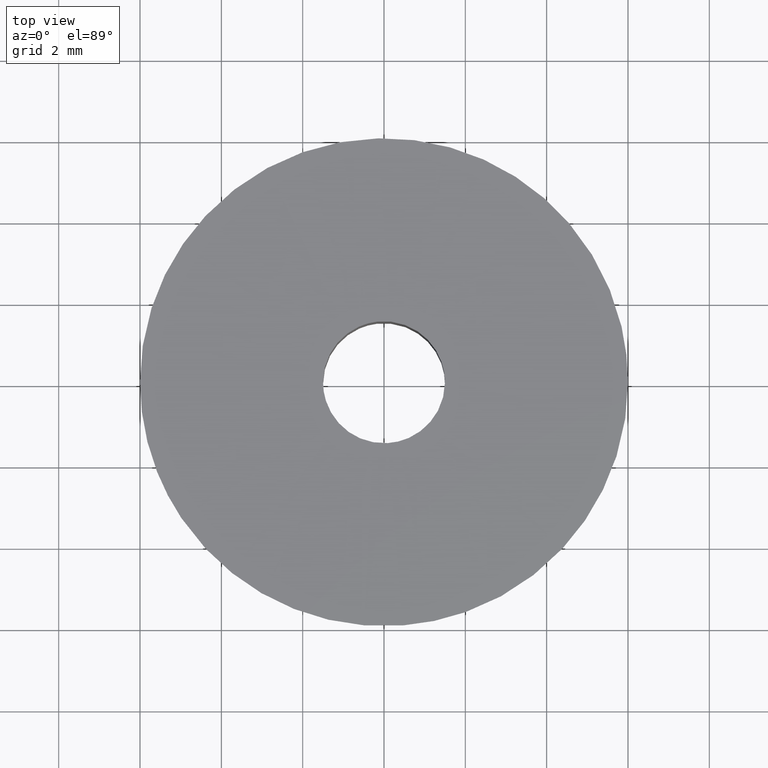
[diagram: clean part render]
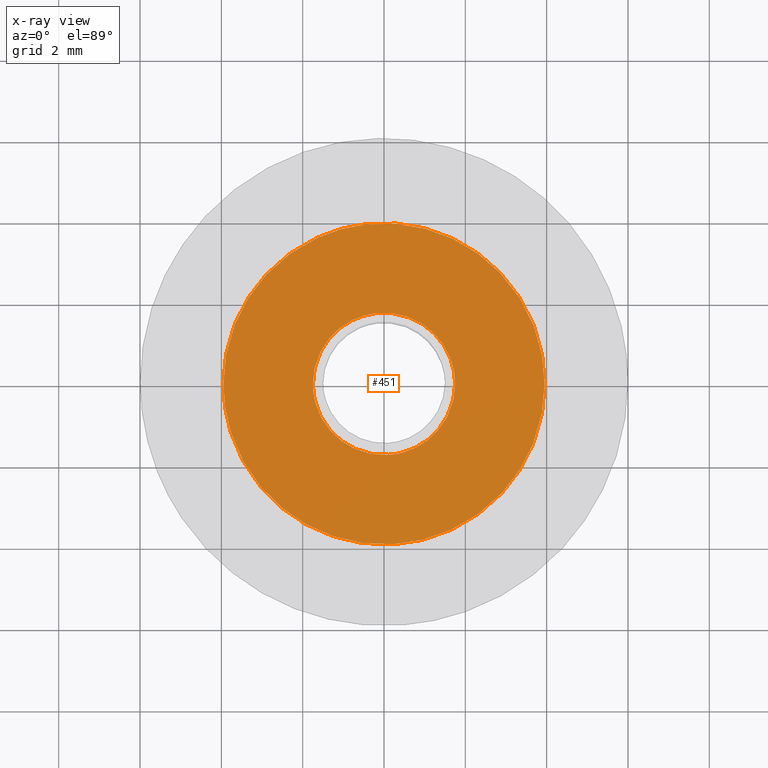
[diagram: x-ray — body ghosted, one internal face saturated and labeled with its STEP entity id]
A machine part, top view, then the same camera in x-ray: the body is ghosted and one INTERNAL B-rep face — a face not visible from any outside direction — is saturated and labeled: STEP entity #451.
In plain terms, the highlighted face is a freeform B-spline surface patch.
Its self-contained STEP definition (entity closure, byte-faithful):
#100=CARTESIAN_POINT('',(0.106833926433540,-1.746735959486079,3.500000000000000));
#101=VERTEX_POINT('',#100);
#107=CARTESIAN_POINT('',(1.750000000000000,0.0,3.500000000000000));
#108=VERTEX_POINT('',#107);
#109=CARTESIAN_POINT('',(1.750000000000000,0.0,3.500000000000000));
#110=CARTESIAN_POINT('',(1.750000000000000,-1.646236578072637,3.500000000000000));
#111=CARTESIAN_POINT('',(0.106833926433540,-1.746735959486079,3.500000000000000));
#119=(BOUNDED_CURVE()B_SPLINE_CURVE(2,(#109,#110,#111),.UNSPECIFIED.,.F.,.U.)B_SPLINE_CURVE_WITH_KNOTS((3,3),(0.500000000000000,0.739333062778021),.UNSPECIFIED.)CURVE()GEOMETRIC_REPRESENTATION_ITEM()RATIONAL_B_SPLINE_CURVE((1.0,0.719603875497853,0.976072257141196))REPRESENTATION_ITEM(''));
#120=EDGE_CURVE('',#108,#101,#119,.T.);
#122=CARTESIAN_POINT('',(-0.206559910658221,1.737766671135359,3.500000000000000));
#123=VERTEX_POINT('',#122);
#124=CARTESIAN_POINT('',(-0.206559910658221,1.737766671135359,3.500000000000000));
#125=CARTESIAN_POINT('',(-0.103642209399830,1.750000000000000,3.500000000000000));
#126=CARTESIAN_POINT('',(0.0,1.750000000000000,3.500000000000000));
#127=CARTESIAN_POINT('',(1.750000000000000,1.750000000000000,3.500000000000000));
#128=CARTESIAN_POINT('',(1.750000000000000,0.0,3.500000000000000));
#136=(BOUNDED_CURVE()B_SPLINE_CURVE(2,(#124,#125,#126,#127,#128),.UNSPECIFIED.,.F.,.U.)B_SPLINE_CURVE_WITH_KNOTS((3,2,3),(0.229562473513914,0.250000000000000,0.500000000000000),.UNSPECIFIED.)CURVE()GEOMETRIC_REPRESENTATION_ITEM()RATIONAL_B_SPLINE_CURVE((0.956026754184495,0.976055948331621,1.0,0.707106781186547,1.0))REPRESENTATION_ITEM(''));
#137=EDGE_CURVE('',#123,#108,#136,.T.);
#181=CARTESIAN_POINT('',(-1.750000000000000,0.0,3.500000000000000));
#182=VERTEX_POINT('',#181);
#183=CARTESIAN_POINT('',(-1.750000000000000,0.0,3.500000000000000));
#184=CARTESIAN_POINT('',(-1.749999999999999,1.554305420398872,3.500000000000000));
#185=CARTESIAN_POINT('',(-0.206559910658221,1.737766671135359,3.500000000000000));
#193=(BOUNDED_CURVE()B_SPLINE_CURVE(2,(#183,#184,#185),.UNSPECIFIED.,.F.,.U.)B_SPLINE_CURVE_WITH_KNOTS((3,3),(0.0,0.229562473513914),.UNSPECIFIED.)CURVE()GEOMETRIC_REPRESENTATION_ITEM()RATIONAL_B_SPLINE_CURVE((1.0,0.731050832854927,0.956026754184495))REPRESENTATION_ITEM(''));
#194=EDGE_CURVE('',#182,#123,#193,.T.);
#196=CARTESIAN_POINT('',(0.106833926433540,-1.746735959486079,3.500000000000000));
#197=CARTESIAN_POINT('',(0.053466825469484,-1.750000000000000,3.500000000000000));
#198=CARTESIAN_POINT('',(0.0,-1.750000000000000,3.500000000000000));
#199=CARTESIAN_POINT('',(-1.750000000000000,-1.750000000000000,3.500000000000000));
#200=CARTESIAN_POINT('',(-1.750000000000000,0.0,3.500000000000000));
#208=(BOUNDED_CURVE()B_SPLINE_CURVE(2,(#196,#197,#198,#199,#200),.UNSPECIFIED.,.F.,.U.)B_SPLINE_CURVE_WITH_KNOTS((3,2,3),(0.739333062778021,0.750000000000000,1.0),.UNSPECIFIED.)CURVE()GEOMETRIC_REPRESENTATION_ITEM()RATIONAL_B_SPLINE_CURVE((0.976072257141196,0.987502905688695,1.0,0.707106781186547,1.0))REPRESENTATION_ITEM(''));
#209=EDGE_CURVE('',#101,#182,#208,.T.);
#271=CARTESIAN_POINT('',(-0.466231454901275,3.922388077491339,3.500000000000000));
#272=VERTEX_POINT('',#271);
#278=CARTESIAN_POINT('',(3.950000000000000,0.0,3.500000000000000));
#279=VERTEX_POINT('',#278);
#280=CARTESIAN_POINT('',(-0.466231454901275,3.922388077491339,3.500000000000000));
#281=CARTESIAN_POINT('',(-0.233933366690343,3.950000000000001,3.500000000000000));
#282=CARTESIAN_POINT('',(0.0,3.950000000000000,3.500000000000000));
#283=CARTESIAN_POINT('',(3.950000000000001,3.950000000000001,3.500000000000000));
#284=CARTESIAN_POINT('',(3.950000000000000,0.0,3.500000000000000));
#292=(BOUNDED_CURVE()B_SPLINE_CURVE(2,(#280,#281,#282,#283,#284),.UNSPECIFIED.,.F.,.U.)B_SPLINE_CURVE_WITH_KNOTS((3,2,3),(0.229562636038872,0.250000000000000,0.500000000000000),.UNSPECIFIED.)CURVE()GEOMETRIC_REPRESENTATION_ITEM()RATIONAL_B_SPLINE_CURVE((0.956027072740310,0.976056138741452,1.0,0.707106781186547,1.0))REPRESENTATION_ITEM(''));
#293=EDGE_CURVE('',#272,#279,#292,.T.);
#295=CARTESIAN_POINT('',(0.241140787998530,-3.942632511452539,3.500000000000000));
#296=VERTEX_POINT('',#295);
#297=CARTESIAN_POINT('',(3.950000000000000,0.0,3.500000000000000));
#298=CARTESIAN_POINT('',(3.950000000000000,-3.715790745396468,3.499999999999999));
#299=CARTESIAN_POINT('',(0.241140787998530,-3.942632511452538,3.500000000000000));
#307=(BOUNDED_CURVE()B_SPLINE_CURVE(2,(#297,#298,#299),.UNSPECIFIED.,.F.,.U.)B_SPLINE_CURVE_WITH_KNOTS((3,3),(0.500000000000000,0.739333044795929),.UNSPECIFIED.)CURVE()GEOMETRIC_REPRESENTATION_ITEM()RATIONAL_B_SPLINE_CURVE((1.0,0.719603896565185,0.976072218602117))REPRESENTATION_ITEM(''));
#308=EDGE_CURVE('',#279,#296,#307,.T.);
#382=CARTESIAN_POINT('',(-3.950000000000000,0.0,3.500000000000000));
#383=VERTEX_POINT('',#382);
#384=CARTESIAN_POINT('',(0.241140787998530,-3.942632511452539,3.500000000000000));
#385=CARTESIAN_POINT('',(0.120682469220751,-3.950000000000001,3.500000000000000));
#386=CARTESIAN_POINT('',(0.0,-3.950000000000000,3.500000000000000));
#387=CARTESIAN_POINT('',(-3.950000000000001,-3.950000000000001,3.500000000000000));
#388=CARTESIAN_POINT('',(-3.950000000000000,0.0,3.500000000000000));
#396=(BOUNDED_CURVE()B_SPLINE_CURVE(2,(#384,#385,#386,#387,#388),.UNSPECIFIED.,.F.,.U.)B_SPLINE_CURVE_WITH_KNOTS((3,2,3),(0.739333044795928,0.750000000000000,1.0),.UNSPECIFIED.)CURVE()GEOMETRIC_REPRESENTATION_ITEM()RATIONAL_B_SPLINE_CURVE((0.976072218602115,0.987502884621361,1.0,0.707106781186547,1.0))REPRESENTATION_ITEM(''));
#397=EDGE_CURVE('',#296,#383,#396,.T.);
#399=CARTESIAN_POINT('',(-3.950000000000000,0.0,3.500000000000000));
#400=CARTESIAN_POINT('',(-3.950000000000000,3.508292775031548,3.500000000000000));
#401=CARTESIAN_POINT('',(-0.466231454901275,3.922388077491338,3.500000000000000));
#409=(BOUNDED_CURVE()B_SPLINE_CURVE(2,(#399,#400,#401),.UNSPECIFIED.,.F.,.U.)B_SPLINE_CURVE_WITH_KNOTS((3,3),(0.0,0.229562636038872),.UNSPECIFIED.)CURVE()GEOMETRIC_REPRESENTATION_ITEM()RATIONAL_B_SPLINE_CURVE((1.0,0.731050642445095,0.956027072740310))REPRESENTATION_ITEM(''));
#410=EDGE_CURVE('',#383,#272,#409,.T.);
#434=CARTESIAN_POINT('',(4.344605058847815,-4.344508993518319,3.500000000000000));
#435=CARTESIAN_POINT('',(-4.344605200110824,-4.344508993518319,3.500000000000000));
#436=CARTESIAN_POINT('',(4.344605058847815,4.344533149492708,3.500000000000000));
#437=CARTESIAN_POINT('',(-4.344605200110824,4.344533149492708,3.500000000000000));
#438=B_SPLINE_SURFACE_WITH_KNOTS('',1,1,((#434,#436),(#435,#437)),.UNSPECIFIED.,.F.,.F.,.U.,(2,2),(2,2),(0.0,8.689210258958639),(0.0,8.689042143011028),.UNSPECIFIED.);
#439=ORIENTED_EDGE('',*,*,#397,.F.);
#440=ORIENTED_EDGE('',*,*,#308,.F.);
#441=ORIENTED_EDGE('',*,*,#293,.F.);
#442=ORIENTED_EDGE('',*,*,#410,.F.);
#443=EDGE_LOOP('',(#439,#440,#441,#442));
#444=FACE_OUTER_BOUND('',#443,.T.);
#445=ORIENTED_EDGE('',*,*,#120,.T.);
#446=ORIENTED_EDGE('',*,*,#209,.T.);
#447=ORIENTED_EDGE('',*,*,#194,.T.);
#448=ORIENTED_EDGE('',*,*,#137,.T.);
#449=EDGE_LOOP('',(#445,#446,#447,#448));
#450=FACE_BOUND('',#449,.T.);
#451=ADVANCED_FACE('',(#444,#450),#438,.F.);